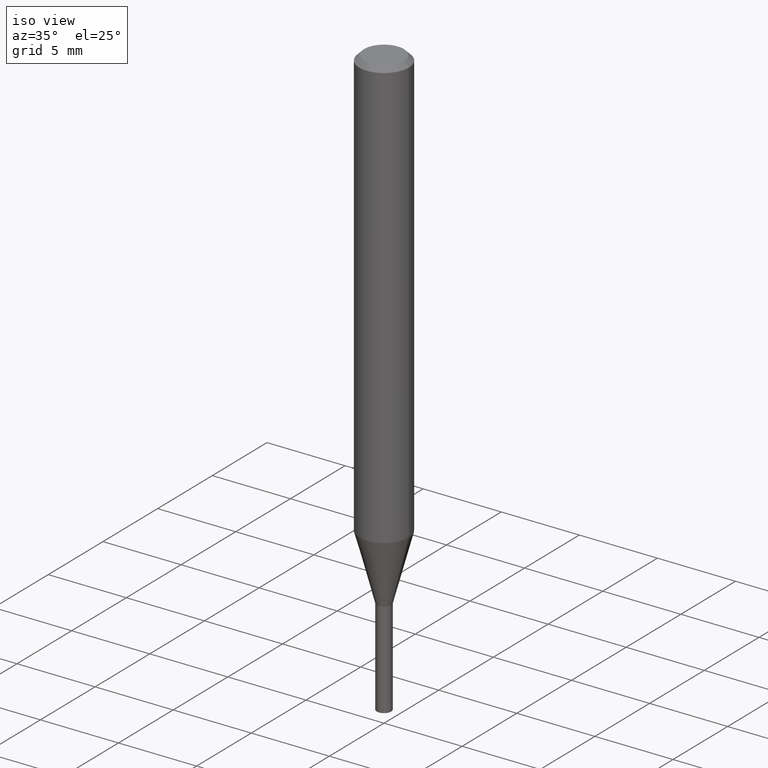
[diagram: clean part render]
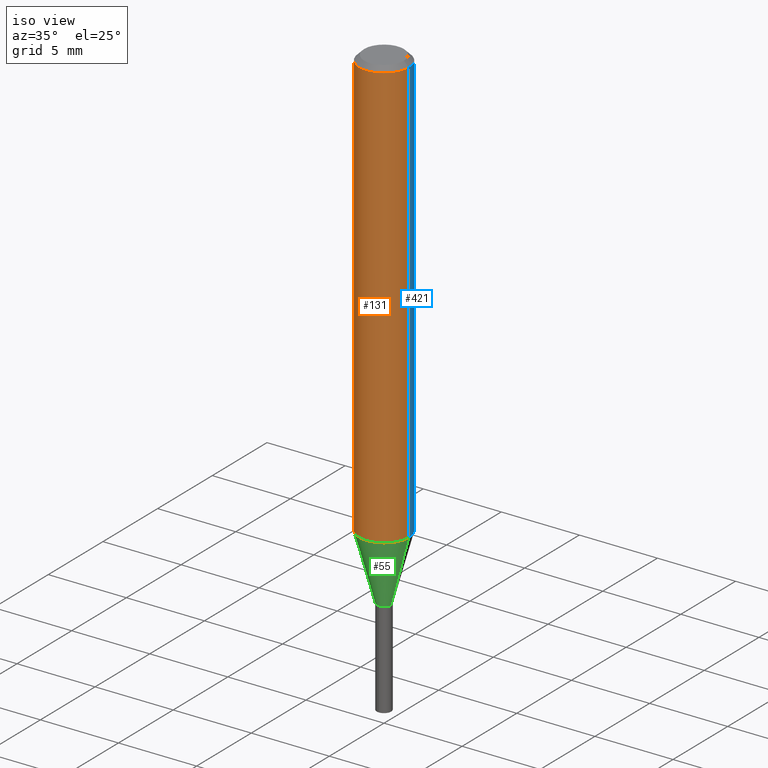
[diagram: same view with three faces highlighted in distinct colors, each labeled with its STEP entity id]
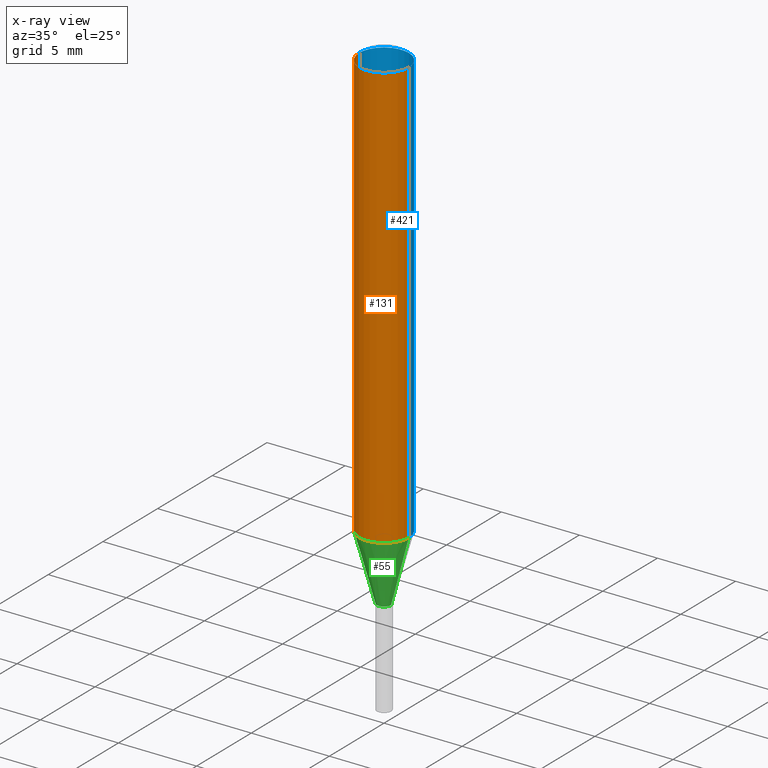
[diagram: x-ray of the same camera — body ghosted, the three highlighted faces saturated]
A machine part, iso view with three faces highlighted in distinct colors.
The next image is the same camera in x-ray (body ghosted, the three faces saturated) — at least one of them is partly hidden behind the body in this view.
Their STEP definitions:

[orange] entity #131 — the highlighted cylindrical surface (edge-blend (fillet) strip) has radius 1.5875 mm, axis along (-0, 0, 1).
#10 = EDGE_LOOP ( 'NONE', ( #444, #199, #452, #407 ) ) ;
#14 = CIRCLE ( 'NONE', #423, 0.06250000000000012490 ) ;
#15 = AXIS2_PLACEMENT_3D ( 'NONE', #175, #21, #324 ) ;
#17 = CYLINDRICAL_SURFACE ( 'NONE', #450, 0.06250000000000006939 ) ;
#21 = DIRECTION ( 'NONE',  ( -2.445468806185136597E-29, 3.491481338843145583E-15, 1.000000000000000000 ) ) ;
#43 = EDGE_CURVE ( 'NONE', #404, #333, #14, .T. ) ;
#72 = CARTESIAN_POINT ( 'NONE',  ( 0.06250000000000001388, -4.800786840909313294E-16, -0.01250000000000008916 ) ) ;
#86 = DIRECTION ( 'NONE',  ( -2.445468806185136597E-29, 3.491481338843145583E-15, 1.000000000000000000 ) ) ;
#102 = VECTOR ( 'NONE', #489, 39.37007874015748143 ) ;
#109 = CARTESIAN_POINT ( 'NONE',  ( 0.06250000000000006939, -4.364351673553921624E-16, 3.047610484872463374E-30 ) ) ;
#131 = ADVANCED_FACE ( 'NONE', ( #422 ), #17, .T. ) ;
#150 = DIRECTION ( 'NONE',  ( -2.445468806185136877E-29, 3.491481338843145188E-15, 1.000000000000000000 ) ) ;
#175 = CARTESIAN_POINT ( 'NONE',  ( 3.056836007731442729E-31, -4.364351673553962300E-17, -0.01250000000000008916 ) ) ;
#178 = DIRECTION ( 'NONE',  ( 1.000000000000000000, -6.982962677686266711E-15, 4.876176775795935793E-29 ) ) ;
#184 = EDGE_CURVE ( 'NONE', #300, #463, #356, .T. ) ;
#185 = DIRECTION ( 'NONE',  ( 1.000000000000000000, -6.982962677686264344E-15, 0.000000000000000000 ) ) ;
#199 = ORIENTED_EDGE ( 'NONE', *, *, #43, .T. ) ;
#224 = CARTESIAN_POINT ( 'NONE',  ( 2.648256223356403194E-29, -3.781008026329371675E-15, -1.082923739063189839 ) ) ;
#226 = VECTOR ( 'NONE', #150, 39.37007874015748143 ) ;
#231 = CARTESIAN_POINT ( 'NONE',  ( -0.06250000000000001388, -1.468236561682391621E-15, -0.01250000000000008916 ) ) ;
#287 = EDGE_CURVE ( 'NONE', #333, #463, #326, .T. ) ;
#295 = EDGE_CURVE ( 'NONE', #404, #300, #471, .T. ) ;
#300 = VERTEX_POINT ( 'NONE', #231 ) ;
#303 = CARTESIAN_POINT ( 'NONE',  ( -0.06250000000000012490, -3.336918816479307875E-15, -1.082923739063189839 ) ) ;
#324 = DIRECTION ( 'NONE',  ( 1.000000000000000000, -6.982962677686265922E-15, 0.000000000000000000 ) ) ;
#326 = LINE ( 'NONE', #109, #102 ) ;
#333 = VERTEX_POINT ( 'NONE', #400 ) ;
#356 = CIRCLE ( 'NONE', #15, 0.06250000000000001388 ) ;
#394 = CARTESIAN_POINT ( 'NONE',  ( -0.06250000000000006939, 4.440892098500631092E-16, -3.074334431409319267E-30 ) ) ;
#400 = CARTESIAN_POINT ( 'NONE',  ( 0.06250000000000012490, -4.217443193684763344E-15, -1.082923739063189839 ) ) ;
#404 = VERTEX_POINT ( 'NONE', #303 ) ;
#407 = ORIENTED_EDGE ( 'NONE', *, *, #184, .F. ) ;
#422 = FACE_OUTER_BOUND ( 'NONE', #10, .T. ) ;
#423 = AXIS2_PLACEMENT_3D ( 'NONE', #224, #435, #185 ) ;
#435 = DIRECTION ( 'NONE',  ( -2.445468806185136597E-29, 3.491481338843145583E-15, 1.000000000000000000 ) ) ;
#444 = ORIENTED_EDGE ( 'NONE', *, *, #295, .F. ) ;
#450 = AXIS2_PLACEMENT_3D ( 'NONE', #466, #86, #178 ) ;
#452 = ORIENTED_EDGE ( 'NONE', *, *, #287, .T. ) ;
#463 = VERTEX_POINT ( 'NONE', #72 ) ;
#466 = CARTESIAN_POINT ( 'NONE',  ( 0.000000000000000000, 0.000000000000000000, 0.000000000000000000 ) ) ;
#471 = LINE ( 'NONE', #394, #226 ) ;
#489 = DIRECTION ( 'NONE',  ( -2.445468806185136877E-29, 3.491481338843145188E-15, 1.000000000000000000 ) ) ;

[blue] entity #421 — the highlighted cylindrical surface (edge-blend (fillet) strip) has radius 1.5875 mm, axis along (-0, 0, 1).
#6 = DIRECTION ( 'NONE',  ( 1.000000000000000000, -6.982962677686265922E-15, 0.000000000000000000 ) ) ;
#7 = AXIS2_PLACEMENT_3D ( 'NONE', #151, #372, #6 ) ;
#72 = CARTESIAN_POINT ( 'NONE',  ( 0.06250000000000001388, -4.800786840909313294E-16, -0.01250000000000008916 ) ) ;
#78 = DIRECTION ( 'NONE',  ( -2.445468806185136597E-29, 3.491481338843145583E-15, 1.000000000000000000 ) ) ;
#88 = CIRCLE ( 'NONE', #7, 0.06250000000000001388 ) ;
#102 = VECTOR ( 'NONE', #489, 39.37007874015748143 ) ;
#109 = CARTESIAN_POINT ( 'NONE',  ( 0.06250000000000006939, -4.364351673553921624E-16, 3.047610484872463374E-30 ) ) ;
#128 = ORIENTED_EDGE ( 'NONE', *, *, #142, .T. ) ;
#142 = EDGE_CURVE ( 'NONE', #333, #404, #440, .T. ) ;
#150 = DIRECTION ( 'NONE',  ( -2.445468806185136877E-29, 3.491481338843145188E-15, 1.000000000000000000 ) ) ;
#151 = CARTESIAN_POINT ( 'NONE',  ( 3.056836007731442729E-31, -4.364351673553962300E-17, -0.01250000000000008916 ) ) ;
#153 = ORIENTED_EDGE ( 'NONE', *, *, #287, .F. ) ;
#176 = DIRECTION ( 'NONE',  ( 1.000000000000000000, -6.982962677686264344E-15, 0.000000000000000000 ) ) ;
#187 = ORIENTED_EDGE ( 'NONE', *, *, #424, .F. ) ;
#194 = CYLINDRICAL_SURFACE ( 'NONE', #227, 0.06250000000000006939 ) ;
#198 = CARTESIAN_POINT ( 'NONE',  ( 0.000000000000000000, 0.000000000000000000, 0.000000000000000000 ) ) ;
#226 = VECTOR ( 'NONE', #150, 39.37007874015748143 ) ;
#227 = AXIS2_PLACEMENT_3D ( 'NONE', #198, #78, #374 ) ;
#231 = CARTESIAN_POINT ( 'NONE',  ( -0.06250000000000001388, -1.468236561682391621E-15, -0.01250000000000008916 ) ) ;
#240 = AXIS2_PLACEMENT_3D ( 'NONE', #388, #464, #176 ) ;
#287 = EDGE_CURVE ( 'NONE', #333, #463, #326, .T. ) ;
#295 = EDGE_CURVE ( 'NONE', #404, #300, #471, .T. ) ;
#298 = ORIENTED_EDGE ( 'NONE', *, *, #295, .T. ) ;
#300 = VERTEX_POINT ( 'NONE', #231 ) ;
#303 = CARTESIAN_POINT ( 'NONE',  ( -0.06250000000000012490, -3.336918816479307875E-15, -1.082923739063189839 ) ) ;
#326 = LINE ( 'NONE', #109, #102 ) ;
#333 = VERTEX_POINT ( 'NONE', #400 ) ;
#372 = DIRECTION ( 'NONE',  ( -2.445468806185136597E-29, 3.491481338843145583E-15, 1.000000000000000000 ) ) ;
#374 = DIRECTION ( 'NONE',  ( 1.000000000000000000, -6.982962677686266711E-15, 4.876176775795935793E-29 ) ) ;
#388 = CARTESIAN_POINT ( 'NONE',  ( 2.648256223356403194E-29, -3.781008026329371675E-15, -1.082923739063189839 ) ) ;
#394 = CARTESIAN_POINT ( 'NONE',  ( -0.06250000000000006939, 4.440892098500631092E-16, -3.074334431409319267E-30 ) ) ;
#400 = CARTESIAN_POINT ( 'NONE',  ( 0.06250000000000012490, -4.217443193684763344E-15, -1.082923739063189839 ) ) ;
#404 = VERTEX_POINT ( 'NONE', #303 ) ;
#421 = ADVANCED_FACE ( 'NONE', ( #446 ), #194, .T. ) ;
#424 = EDGE_CURVE ( 'NONE', #463, #300, #88, .T. ) ;
#440 = CIRCLE ( 'NONE', #240, 0.06250000000000012490 ) ;
#446 = FACE_OUTER_BOUND ( 'NONE', #484, .T. ) ;
#463 = VERTEX_POINT ( 'NONE', #72 ) ;
#464 = DIRECTION ( 'NONE',  ( -2.445468806185136597E-29, 3.491481338843145583E-15, 1.000000000000000000 ) ) ;
#471 = LINE ( 'NONE', #394, #226 ) ;
#484 = EDGE_LOOP ( 'NONE', ( #128, #298, #187, #153 ) ) ;
#489 = DIRECTION ( 'NONE',  ( -2.445468806185136877E-29, 3.491481338843145188E-15, 1.000000000000000000 ) ) ;

[green] entity #55 — the highlighted conical surface has half-angle 15 deg.
#4 = VECTOR ( 'NONE', #106, 39.37007874015748854 ) ;
#14 = CIRCLE ( 'NONE', #423, 0.06250000000000012490 ) ;
#24 = CARTESIAN_POINT ( 'NONE',  ( -0.01800000000000000558, -4.232962499778271317E-15, -1.249000000000000332 ) ) ;
#33 = CARTESIAN_POINT ( 'NONE',  ( 0.01800000000000000558, -4.486553520413442454E-15, -1.249000000000000332 ) ) ;
#35 = CARTESIAN_POINT ( 'NONE',  ( -0.01800000000000000558, -3.971974269699745884E-15, -1.249000000000000332 ) ) ;
#43 = EDGE_CURVE ( 'NONE', #404, #333, #14, .T. ) ;
#55 = ADVANCED_FACE ( 'NONE', ( #432 ), #155, .T. ) ;
#62 = DIRECTION ( 'NONE',  ( 1.000000000000000000, -6.982962677686250144E-15, 0.000000000000000000 ) ) ;
#64 = CARTESIAN_POINT ( 'NONE',  ( 3.054390538925236264E-29, -4.360860192215089464E-15, -1.249000000000000332 ) ) ;
#74 = VECTOR ( 'NONE', #330, 39.37007874015748854 ) ;
#97 = DIRECTION ( 'NONE',  ( -2.445468806185136597E-29, 3.491481338843145583E-15, 1.000000000000000000 ) ) ;
#98 = ORIENTED_EDGE ( 'NONE', *, *, #43, .F. ) ;
#106 = DIRECTION ( 'NONE',  ( -0.2588190451025281225, 5.211531920934590485E-15, 0.9659258262890662028 ) ) ;
#123 = CARTESIAN_POINT ( 'NONE',  ( 3.054390538925236264E-29, -4.360860192215089464E-15, -1.249000000000000332 ) ) ;
#124 = AXIS2_PLACEMENT_3D ( 'NONE', #64, #97, #62 ) ;
#155 = CONICAL_SURFACE ( 'NONE', #172, 0.01800000000000000558, 0.2617993877991570684 ) ;
#167 = ORIENTED_EDGE ( 'NONE', *, *, #316, .F. ) ;
#172 = AXIS2_PLACEMENT_3D ( 'NONE', #123, #318, #360 ) ;
#185 = DIRECTION ( 'NONE',  ( 1.000000000000000000, -6.982962677686264344E-15, 0.000000000000000000 ) ) ;
#224 = CARTESIAN_POINT ( 'NONE',  ( 2.648256223356403194E-29, -3.781008026329371675E-15, -1.082923739063189839 ) ) ;
#254 = VERTEX_POINT ( 'NONE', #480 ) ;
#259 = EDGE_CURVE ( 'NONE', #254, #333, #336, .T. ) ;
#294 = ORIENTED_EDGE ( 'NONE', *, *, #390, .T. ) ;
#303 = CARTESIAN_POINT ( 'NONE',  ( -0.06250000000000012490, -3.336918816479307875E-15, -1.082923739063189839 ) ) ;
#316 = EDGE_CURVE ( 'NONE', #382, #404, #367, .T. ) ;
#318 = DIRECTION ( 'NONE',  ( -2.445468806185136597E-29, 3.491481338843145583E-15, 1.000000000000000000 ) ) ;
#330 = DIRECTION ( 'NONE',  ( 0.2588190451025281225, 1.565188264969568128E-15, 0.9659258262890662028 ) ) ;
#333 = VERTEX_POINT ( 'NONE', #400 ) ;
#336 = LINE ( 'NONE', #33, #74 ) ;
#337 = CIRCLE ( 'NONE', #124, 0.01800000000000000558 ) ;
#360 = DIRECTION ( 'NONE',  ( 1.000000000000000000, -6.982962677686250144E-15, 0.000000000000000000 ) ) ;
#367 = LINE ( 'NONE', #24, #4 ) ;
#382 = VERTEX_POINT ( 'NONE', #35 ) ;
#390 = EDGE_CURVE ( 'NONE', #382, #254, #337, .T. ) ;
#400 = CARTESIAN_POINT ( 'NONE',  ( 0.06250000000000012490, -4.217443193684763344E-15, -1.082923739063189839 ) ) ;
#404 = VERTEX_POINT ( 'NONE', #303 ) ;
#415 = ORIENTED_EDGE ( 'NONE', *, *, #259, .T. ) ;
#423 = AXIS2_PLACEMENT_3D ( 'NONE', #224, #435, #185 ) ;
#432 = FACE_OUTER_BOUND ( 'NONE', #434, .T. ) ;
#434 = EDGE_LOOP ( 'NONE', ( #167, #294, #415, #98 ) ) ;
#435 = DIRECTION ( 'NONE',  ( -2.445468806185136597E-29, 3.491481338843145583E-15, 1.000000000000000000 ) ) ;
#480 = CARTESIAN_POINT ( 'NONE',  ( 0.01800000000000000558, -4.486553520413442454E-15, -1.249000000000000332 ) ) ;